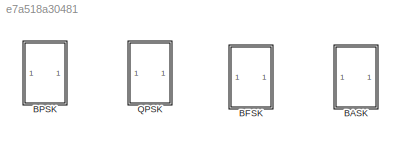
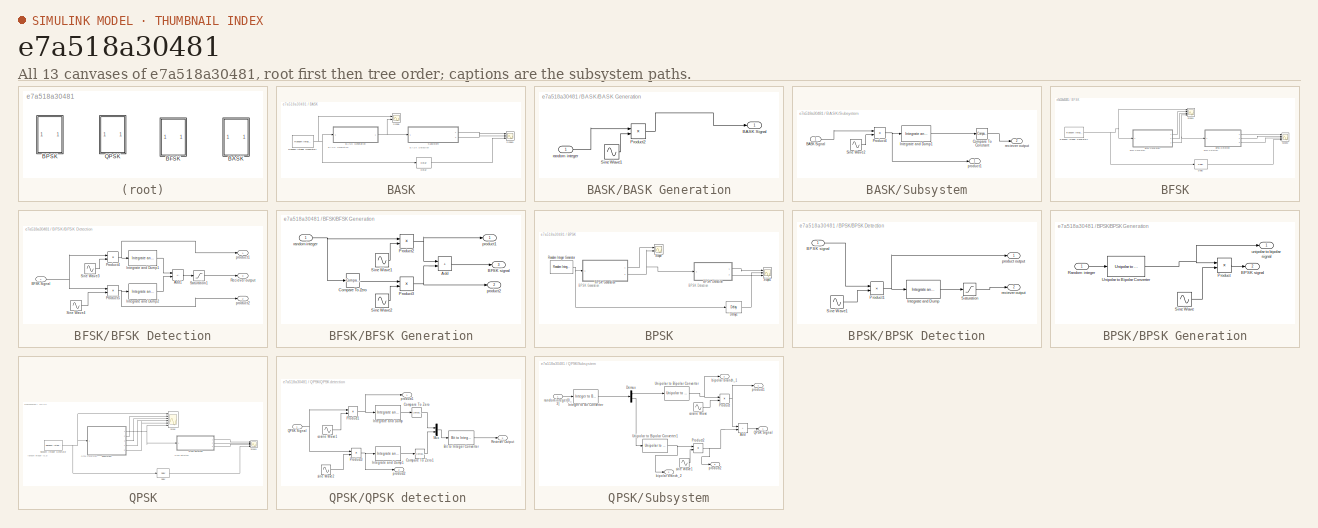
[diagram: thumbnail index - all 13 canvases of the model, root first then tree order]
MODEL slx_e7a518a30481
KIND model
CONFIG AbsTol = auto
CONFIG EnableMultiTasking = on
CONFIG FixedStep = auto
CONFIG MaxStep = auto
CONFIG MinStep = auto
CONFIG RelTol = 1e-3
CONFIG SampleTimeConstraint = Unconstrained
CONFIG Solver = VariableStepAuto
CONFIG SolverName = VariableStepAuto
CONFIG StartTime = 0.0
CONFIG StopTime = 0.1
BLOCK [SubSystem] BASK
  Ports = []
  RequestExecContextInheritance = off
BLOCK [SubSystem] BASK/BASK Generation
  Ports = [1, 1]
  RequestExecContextInheritance = off
BLOCK [Outport] BASK/BASK Generation/BASK Signal
BLOCK [Product] BASK/BASK Generation/Product2
  Ports = [2, 1]
BLOCK [Sin] BASK/BASK Generation/Sine Wave1
  Frequency = 300*2*pi
  Phase = pi/2
  Ports = [0, 1]
  SampleTime = 1/(300*100)
BLOCK [Inport] BASK/BASK Generation/random integer
BLOCK [Delay] BASK/Delay
  DelayLength = 1
  InputPortMap = u0
  InputProcessing = Columns as channels (frame based)
  Ports = [1, 1]
BLOCK [Reference] BASK/Random Integer Generator1  REF=commrandsrc3/Random Integer
Generator
  Ports = [0, 1]
  SourceBlock = commrandsrc3/Random Integer\nGenerator
  SourceProductBaseCode = CM
  SourceType = Random Integer Generator
BLOCK [Scope] BASK/Scope
  Floating = off
  NumInputPorts = 2
  Ports = [2]
  ScopeSpecificationString = Simulink.scopes.TimeScopeBlockCfg('CurrentConfiguration', extmgr.ConfigurationSet(extmgr.Configuration('Core','General UI',true),extmgr.Configuration('Core','Source UI',true),extmgr.Configuration('Sources','WiredSimulink',true,'DataLoggingVariableName','ScopeData1'),extmgr.Configuration('Visuals','Time Domain',true,'SerializedDisplays',{struct('MinYLimReal','-0.125','MaxYLimReal','1.125','YLabelRe...<+1983ch>
BLOCK [Scope] BASK/Scope1
  Floating = off
  NumInputPorts = 3
  Ports = [3]
  ScopeSpecificationString = Simulink.scopes.TimeScopeBlockCfg('CurrentConfiguration', extmgr.ConfigurationSet(extmgr.Configuration('Core','General UI',true),extmgr.Configuration('Core','Source UI',true),extmgr.Configuration('Sources','WiredSimulink',true,'DataLoggingVariableName','ScopeData2'),extmgr.Configuration('Visuals','Time Domain',true,'SerializedDisplays',{struct('MinYLimReal','-0.125','MaxYLimReal','1.125','YLabelRe...<+2739ch>
BLOCK [SubSystem] BASK/Subsystem
  Ports = [1, 2]
  RequestExecContextInheritance = off
BLOCK [Inport] BASK/Subsystem/BASK Signal
BLOCK [Reference] BASK/Subsystem/Compare To Constant  REF=simulink/Logic and Bit
Operations/Compare
To Constant
  Ports = [1, 1]
  SourceBlock = simulink/Logic and Bit\nOperations/Compare\nTo Constant
  SourceProductBaseCode = SL
  SourceType = Compare To Constant
BLOCK [Reference] BASK/Subsystem/Integrate and Dump1  REF=commfilt2/Integrate
and Dump
  Ports = [1, 1]
  SourceBlock = commfilt2/Integrate\nand Dump
  SourceProductBaseCode = CM
  SourceType = Integrate and Dump
BLOCK [Product] BASK/Subsystem/Product4
  Ports = [2, 1]
BLOCK [Sin] BASK/Subsystem/Sine Wave2
  Frequency = 300*2*pi
  Phase = pi/2
  Ports = [0, 1]
  SampleTime = 1/(300*100)
BLOCK [Outport] BASK/Subsystem/product1
BLOCK [Outport] BASK/Subsystem/reciever output
  Port = 2
BLOCK [SubSystem] BFSK
  Ports = []
  RequestExecContextInheritance = off
BLOCK [SubSystem] BFSK/BFSK Detection
  Ports = [1, 3]
  RequestExecContextInheritance = off
BLOCK [Sum] BFSK/BFSK Detection/Add1
  IconShape = rectangular
  Inputs = +-
  Ports = [2, 1]
BLOCK [Inport] BFSK/BFSK Detection/BFSK Signal
BLOCK [Reference] BFSK/BFSK Detection/Integrate and Dump1  REF=commfilt2/Integrate
and Dump
  Ports = [1, 1]
  SourceBlock = commfilt2/Integrate\nand Dump
  SourceProductBaseCode = CM
  SourceType = Integrate and Dump
BLOCK [Reference] BFSK/BFSK Detection/Integrate and Dump2  REF=commfilt2/Integrate
and Dump
  Ports = [1, 1]
  SourceBlock = commfilt2/Integrate\nand Dump
  SourceProductBaseCode = CM
  SourceType = Integrate and Dump
BLOCK [Product] BFSK/BFSK Detection/Product4
  Ports = [2, 1]
BLOCK [Product] BFSK/BFSK Detection/Product5
  Ports = [2, 1]
BLOCK [Outport] BFSK/BFSK Detection/Reciever output
  Port = 3
BLOCK [Saturate] BFSK/BFSK Detection/Saturation1
  LowerLimit = 0
  UpperLimit = 1
BLOCK [Sin] BFSK/BFSK Detection/Sine Wave3
  Frequency = 300*2*pi
  Phase = pi/2
  Ports = [0, 1]
  SampleTime = 1/(600*50)
BLOCK [Sin] BFSK/BFSK Detection/Sine Wave4
  Frequency = 600*2*pi
  Phase = pi/2
  Ports = [0, 1]
  SampleTime = 1/(600*50)
BLOCK [Outport] BFSK/BFSK Detection/product1
BLOCK [Outport] BFSK/BFSK Detection/product2
  Port = 2
BLOCK [SubSystem] BFSK/BFSK Generation
  Ports = [1, 3]
  RequestExecContextInheritance = off
BLOCK [Sum] BFSK/BFSK Generation/Add
  IconShape = rectangular
  Ports = [2, 1]
BLOCK [Outport] BFSK/BFSK Generation/BFSK signal
  Port = 3
BLOCK [Reference] BFSK/BFSK Generation/Compare To Zero  REF=simulink/Logic and Bit
Operations/Compare
To Zero
  Ports = [1, 1]
  SourceBlock = simulink/Logic and Bit\nOperations/Compare\nTo Zero
  SourceProductBaseCode = SL
  SourceType = Compare To Zero
BLOCK [Product] BFSK/BFSK Generation/Product2
  Ports = [2, 1]
BLOCK [Product] BFSK/BFSK Generation/Product3
  Ports = [2, 1]
BLOCK [Sin] BFSK/BFSK Generation/Sine Wave1
  Frequency = 300*2*pi
  Phase = pi/2
  Ports = [0, 1]
  SampleTime = 1/(600*50)
BLOCK [Sin] BFSK/BFSK Generation/Sine Wave2
  Frequency = 600*2*pi
  Phase = pi/2
  Ports = [0, 1]
  SampleTime = 1/(600*50)
BLOCK [Outport] BFSK/BFSK Generation/product1
BLOCK [Outport] BFSK/BFSK Generation/product2
  Port = 2
BLOCK [Inport] BFSK/BFSK Generation/random integer
BLOCK [Delay] BFSK/Delay
  DelayLength = 1
  InputPortMap = u0
  InputProcessing = Columns as channels (frame based)
  Ports = [1, 1]
BLOCK [Reference] BFSK/Random Integer Generator1  REF=commrandsrc3/Random Integer
Generator
  Ports = [0, 1]
  SourceBlock = commrandsrc3/Random Integer\nGenerator
  SourceProductBaseCode = CM
  SourceType = Random Integer Generator
BLOCK [Scope] BFSK/Scope1
  Floating = off
  NumInputPorts = 4
  Ports = [4]
  ScopeSpecificationString = Simulink.scopes.TimeScopeBlockCfg('CurrentConfiguration', extmgr.ConfigurationSet(extmgr.Configuration('Core','General UI',true),extmgr.Configuration('Core','Source UI',true),extmgr.Configuration('Sources','WiredSimulink',true,'DataLoggingVariableName','ScopeData2'),extmgr.Configuration('Visuals','Time Domain',true,'SerializedDisplays',{struct('MinYLimReal','-0.125','MaxYLimReal','1.125','YLabelRe...<+3449ch>
BLOCK [Scope] BFSK/Scope2
  Floating = off
  NumInputPorts = 4
  Ports = [4]
  ScopeSpecificationString = Simulink.scopes.TimeScopeBlockCfg('CurrentConfiguration', extmgr.ConfigurationSet(extmgr.Configuration('Core','General UI',true),extmgr.Configuration('Core','Source UI',true),extmgr.Configuration('Sources','WiredSimulink',true,'DataLoggingVariableName','ScopeData3'),extmgr.Configuration('Visuals','Time Domain',true,'SerializedDisplays',{struct('MinYLimReal','-1.25','MaxYLimReal','1.25','YLabelReal...<+3487ch>
BLOCK [SubSystem] BPSK
  Ports = []
  RequestExecContextInheritance = off
BLOCK [SubSystem] BPSK/BPSK Detection
  Ports = [1, 2]
  RequestExecContextInheritance = off
BLOCK [Inport] BPSK/BPSK Detection/BPSK signal
BLOCK [Reference] BPSK/BPSK Detection/Integrate and Dump  REF=commfilt2/Integrate
and Dump
  Ports = [1, 1]
  SourceBlock = commfilt2/Integrate\nand Dump
  SourceProductBaseCode = CM
  SourceType = Integrate and Dump
BLOCK [Product] BPSK/BPSK Detection/Product1
  Ports = [2, 1]
BLOCK [Saturate] BPSK/BPSK Detection/Saturation
  LowerLimit = 0
  UpperLimit = 1
BLOCK [Sin] BPSK/BPSK Detection/Sine Wave1
  Frequency = 300*2*pi
  Ports = [0, 1]
  SampleTime = 1/(300*50)
BLOCK [Outport] BPSK/BPSK Detection/product output
BLOCK [Outport] BPSK/BPSK Detection/reciever output
  Port = 2
BLOCK [SubSystem] BPSK/BPSK Generation
  Ports = [1, 2]
  RequestExecContextInheritance = off
BLOCK [Outport] BPSK/BPSK Generation/BPSK signal
  Port = 2
BLOCK [Product] BPSK/BPSK Generation/Product
  Ports = [2, 1]
BLOCK [Inport] BPSK/BPSK Generation/Random integer
  IconDisplay = Signal name
BLOCK [Sin] BPSK/BPSK Generation/Sine Wave
  Frequency = 300*2*pi
  Ports = [0, 1]
  SampleTime = 1/(300*50)
BLOCK [Reference] BPSK/BPSK Generation/Unipolar to Bipolar Converter  REF=commutil2/Unipolar to
Bipolar
Converter
  Ports = [1, 1]
  SourceBlock = commutil2/Unipolar to\nBipolar\nConverter
  SourceProductBaseCode = CM
  SourceType = Unipolar to Bipolar Converter
BLOCK [Outport] BPSK/BPSK Generation/unipolar to bipolar signal
BLOCK [Delay] BPSK/Delay1
  DelayLength = 1
  InputPortMap = u0
  InputProcessing = Columns as channels (frame based)
  Ports = [1, 1]
BLOCK [Reference] BPSK/Random Integer Generator  REF=commrandsrc3/Random Integer
Generator
  Ports = [0, 1]
  SourceBlock = commrandsrc3/Random Integer\nGenerator
  SourceProductBaseCode = CM
  SourceType = Random Integer Generator
BLOCK [Scope] BPSK/Scope
  Floating = off
  NumInputPorts = 2
  Ports = [2]
  ScopeSpecificationString = Simulink.scopes.TimeScopeBlockCfg('CurrentConfiguration', extmgr.ConfigurationSet(extmgr.Configuration('Core','General UI',true),extmgr.Configuration('Core','Source UI',true),extmgr.Configuration('Sources','WiredSimulink',true),extmgr.Configuration('Visuals','Time Domain',true,'SerializedDisplays',{struct('MinYLimReal','-1.25','MaxYLimReal','1.25','YLabelReal','','MinYLimMag','0.00000','MaxYLimMag...<+1962ch>
BLOCK [Scope] BPSK/Scope1
  Floating = off
  NumInputPorts = 3
  Ports = [3]
  ScopeSpecificationString = Simulink.scopes.TimeScopeBlockCfg('CurrentConfiguration', extmgr.ConfigurationSet(extmgr.Configuration('Core','General UI',true),extmgr.Configuration('Core','Source UI',true),extmgr.Configuration('Sources','WiredSimulink',true,'DataLoggingVariableName','ScopeData1'),extmgr.Configuration('Visuals','Time Domain',true,'SerializedDisplays',{struct('MinYLimReal','-1.24507','MaxYLimReal','1.24507','YLab...<+2744ch>
BLOCK [SubSystem] QPSK
  Ports = []
  RequestExecContextInheritance = off
BLOCK [Delay] QPSK/Delay
  DelayLength = 1
  InputPortMap = u0
  InputProcessing = Columns as channels (frame based)
  Ports = [1, 1]
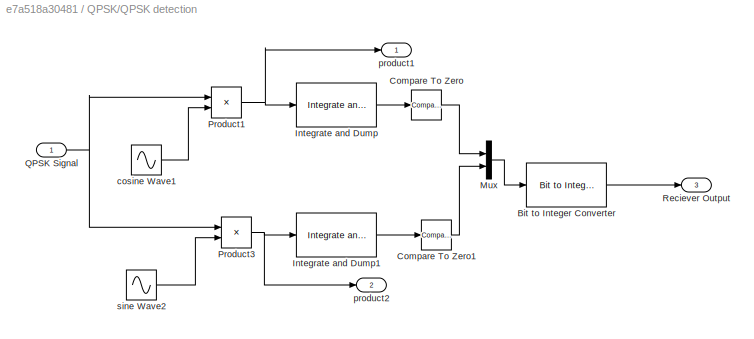
BLOCK [SubSystem] QPSK/QPSK detection 
  Ports = [1, 3]
  RequestExecContextInheritance = off
BLOCK [Reference] QPSK/QPSK detection /Bit to Integer Converter  REF=commutil2/Bit to Integer
Converter
  Ports = [1, 1]
  SourceBlock = commutil2/Bit to Integer\nConverter
  SourceProductBaseCode = CM
  SourceType = Bit to Integer Converter
BLOCK [Reference] QPSK/QPSK detection /Compare To Zero  REF=simulink/Logic and Bit
Operations/Compare
To Zero
  Ports = [1, 1]
  SourceBlock = simulink/Logic and Bit\nOperations/Compare\nTo Zero
  SourceProductBaseCode = SL
  SourceType = Compare To Zero
BLOCK [Reference] QPSK/QPSK detection /Compare To Zero1  REF=simulink/Logic and Bit
Operations/Compare
To Zero
  Ports = [1, 1]
  SourceBlock = simulink/Logic and Bit\nOperations/Compare\nTo Zero
  SourceProductBaseCode = SL
  SourceType = Compare To Zero
BLOCK [Reference] QPSK/QPSK detection /Integrate and Dump  REF=commfilt2/Integrate
and Dump
  Ports = [1, 1]
  SourceBlock = commfilt2/Integrate\nand Dump
  SourceProductBaseCode = CM
  SourceType = Integrate and Dump
BLOCK [Reference] QPSK/QPSK detection /Integrate and Dump1  REF=commfilt2/Integrate
and Dump
  Ports = [1, 1]
  SourceBlock = commfilt2/Integrate\nand Dump
  SourceProductBaseCode = CM
  SourceType = Integrate and Dump
BLOCK [Mux] QPSK/QPSK detection /Mux
  DisplayOption = bar
  Inputs = 2
  Ports = [2, 1]
BLOCK [Product] QPSK/QPSK detection /Product1
  Ports = [2, 1]
BLOCK [Product] QPSK/QPSK detection /Product3
  Ports = [2, 1]
BLOCK [Inport] QPSK/QPSK detection /QPSK Signal
BLOCK [Outport] QPSK/QPSK detection /Reciever Output
  Port = 3
BLOCK [Sin] QPSK/QPSK detection /cosine Wave1
  Amplitude = 0.7071
  Frequency = 300*2*pi
  Phase = pi/2
  Ports = [0, 1]
  SampleTime = 1/(300*100)
BLOCK [Outport] QPSK/QPSK detection /product1
BLOCK [Outport] QPSK/QPSK detection /product2
  Port = 2
BLOCK [Sin] QPSK/QPSK detection /sine Wave2
  Amplitude = 0.7071
  Frequency = 300*2*pi
  Ports = [0, 1]
  SampleTime = 1/(300*100)
BLOCK [Reference] QPSK/Random Integer Generator  REF=commrandsrc3/Random Integer
Generator
  Ports = [0, 1]
  SourceBlock = commrandsrc3/Random Integer\nGenerator
  SourceProductBaseCode = CM
  SourceType = Random Integer Generator
BLOCK [Scope] QPSK/Scope
  Floating = off
  NumInputPorts = 6
  Ports = [6]
  ScopeSpecificationString = Simulink.scopes.TimeScopeBlockCfg('CurrentConfiguration', extmgr.ConfigurationSet(extmgr.Configuration('Core','General UI',true),extmgr.Configuration('Core','Source UI',true),extmgr.Configuration('Sources','WiredSimulink',true),extmgr.Configuration('Visuals','Time Domain',true,'SerializedDisplays',{struct('MinYLimReal','-0.375','MaxYLimReal','3.375','YLabelReal','','MinYLimMag','0.00000','MaxYLimM...<+6140ch>
BLOCK [Scope] QPSK/Scope1
  Floating = off
  NumInputPorts = 4
  Ports = [4]
  ScopeSpecificationString = Simulink.scopes.TimeScopeBlockCfg('CurrentConfiguration', extmgr.ConfigurationSet(extmgr.Configuration('Core','General UI',true),extmgr.Configuration('Core','Source UI',true),extmgr.Configuration('Sources','WiredSimulink',true,'DataLoggingVariableName','ScopeData2'),extmgr.Configuration('Visuals','Time Domain',true,'SerializedDisplays',{struct('MinYLimReal','-0.75421','MaxYLimReal','0.75421','YLab...<+3393ch>
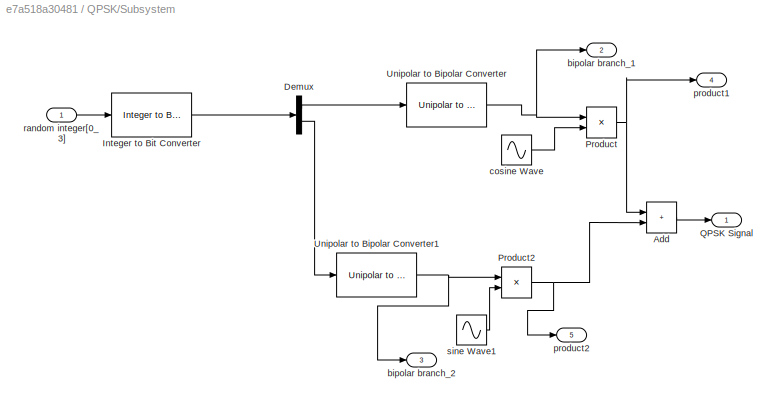
BLOCK [SubSystem] QPSK/Subsystem
  Ports = [1, 5]
  RequestExecContextInheritance = off
BLOCK [Sum] QPSK/Subsystem/Add
  IconShape = rectangular
  Ports = [2, 1]
BLOCK [Demux] QPSK/Subsystem/Demux
  Outputs = 2
  Ports = [1, 2]
BLOCK [Reference] QPSK/Subsystem/Integer to Bit Converter  REF=commutil2/Integer to Bit
Converter
  Ports = [1, 1]
  SourceBlock = commutil2/Integer to Bit\nConverter
  SourceProductBaseCode = CM
  SourceType = Integer to Bit Converter
BLOCK [Product] QPSK/Subsystem/Product
  Ports = [2, 1]
BLOCK [Product] QPSK/Subsystem/Product2
  Ports = [2, 1]
BLOCK [Outport] QPSK/Subsystem/QPSK Signal
BLOCK [Reference] QPSK/Subsystem/Unipolar to Bipolar Converter  REF=commutil2/Unipolar to
Bipolar
Converter
  Ports = [1, 1]
  SourceBlock = commutil2/Unipolar to\nBipolar\nConverter
  SourceProductBaseCode = CM
  SourceType = Unipolar to Bipolar Converter
BLOCK [Reference] QPSK/Subsystem/Unipolar to Bipolar Converter1  REF=commutil2/Unipolar to
Bipolar
Converter
  Ports = [1, 1]
  SourceBlock = commutil2/Unipolar to\nBipolar\nConverter
  SourceProductBaseCode = CM
  SourceType = Unipolar to Bipolar Converter
BLOCK [Outport] QPSK/Subsystem/bipolar branch_1
  Port = 2
BLOCK [Outport] QPSK/Subsystem/bipolar branch_2
  Port = 3
BLOCK [Sin] QPSK/Subsystem/cosine Wave
  Amplitude = 0.7071
  Frequency = 300*2*pi
  Phase = pi/2
  Ports = [0, 1]
  SampleTime = 1/(300*100)
BLOCK [Outport] QPSK/Subsystem/product1
  Port = 4
BLOCK [Outport] QPSK/Subsystem/product2
  Port = 5
BLOCK [Inport] QPSK/Subsystem/random integer[0_3]
BLOCK [Sin] QPSK/Subsystem/sine Wave1
  Amplitude = 0.7071
  Frequency = 300*2*pi
  Ports = [0, 1]
  SampleTime = 1/(300*100)
ANNOTATION BASK: BASK Detection
ANNOTATION BASK: BASK Generation
ANNOTATION BFSK: BFSK Detection
ANNOTATION BFSK: BFSK Generation
ANNOTATION BPSK: BPSK Detection
ANNOTATION BPSK: BPSK Generation
ANNOTATION QPSK: QPSK Detection
ANNOTATION QPSK: QPSK Generation
ANNOTATION QPSK: random integer {0,3}
LINE BASK/BASK Generation/Product2:1 -> BASK/BASK Generation/BASK Signal:1
LINE BASK/BASK Generation/Sine Wave1:1 -> BASK/BASK Generation/Product2:2
LINE BASK/BASK Generation/random integer:1 -> BASK/BASK Generation/Product2:1
NET BASK/BASK Generation:1 -> BASK/Scope:2, BASK/Subsystem:1
LINE BASK/Delay:1 -> BASK/Scope1:3
NET BASK/Random Integer Generator1:1 -> BASK/BASK Generation:1, BASK/Delay:1, BASK/Scope:1
LINE BASK/Subsystem/BASK Signal:1 -> BASK/Subsystem/Product4:1
LINE BASK/Subsystem/Compare To Constant:1 -> BASK/Subsystem/reciever output:1
LINE BASK/Subsystem/Integrate and Dump1:1 -> BASK/Subsystem/Compare To Constant:1
NET BASK/Subsystem/Product4:1 -> BASK/Subsystem/Integrate and Dump1:1, BASK/Subsystem/product1:1
LINE BASK/Subsystem/Sine Wave2:1 -> BASK/Subsystem/Product4:2
LINE BASK/Subsystem:1 -> BASK/Scope1:1
LINE BASK/Subsystem:2 -> BASK/Scope1:2
LINE BFSK/BFSK Detection/Add1:1 -> BFSK/BFSK Detection/Saturation1:1
NET BFSK/BFSK Detection/BFSK Signal:1 -> BFSK/BFSK Detection/Product4:1, BFSK/BFSK Detection/Product5:1
LINE BFSK/BFSK Detection/Integrate and Dump1:1 -> BFSK/BFSK Detection/Add1:1
LINE BFSK/BFSK Detection/Integrate and Dump2:1 -> BFSK/BFSK Detection/Add1:2
NET BFSK/BFSK Detection/Product4:1 -> BFSK/BFSK Detection/Integrate and Dump1:1, BFSK/BFSK Detection/product1:1
NET BFSK/BFSK Detection/Product5:1 -> BFSK/BFSK Detection/Integrate and Dump2:1, BFSK/BFSK Detection/product2:1
LINE BFSK/BFSK Detection/Saturation1:1 -> BFSK/BFSK Detection/Reciever output:1
LINE BFSK/BFSK Detection/Sine Wave3:1 -> BFSK/BFSK Detection/Product4:2
LINE BFSK/BFSK Detection/Sine Wave4:1 -> BFSK/BFSK Detection/Product5:2
LINE BFSK/BFSK Detection:1 -> BFSK/Scope2:1
LINE BFSK/BFSK Detection:2 -> BFSK/Scope2:2
LINE BFSK/BFSK Detection:3 -> BFSK/Scope2:3
LINE BFSK/BFSK Generation/Add:1 -> BFSK/BFSK Generation/BFSK signal:1
LINE BFSK/BFSK Generation/Compare To Zero:1 -> BFSK/BFSK Generation/Product3:1
NET BFSK/BFSK Generation/Product2:1 -> BFSK/BFSK Generation/Add:1, BFSK/BFSK Generation/product1:1
NET BFSK/BFSK Generation/Product3:1 -> BFSK/BFSK Generation/Add:2, BFSK/BFSK Generation/product2:1
LINE BFSK/BFSK Generation/Sine Wave1:1 -> BFSK/BFSK Generation/Product2:2
LINE BFSK/BFSK Generation/Sine Wave2:1 -> BFSK/BFSK Generation/Product3:2
NET BFSK/BFSK Generation/random integer:1 -> BFSK/BFSK Generation/Compare To Zero:1, BFSK/BFSK Generation/Product2:1
LINE BFSK/BFSK Generation:1 -> BFSK/Scope1:2
LINE BFSK/BFSK Generation:2 -> BFSK/Scope1:3
NET BFSK/BFSK Generation:3 -> BFSK/BFSK Detection:1, BFSK/Scope1:4
LINE BFSK/Delay:1 -> BFSK/Scope2:4
NET BFSK/Random Integer Generator1:1 -> BFSK/BFSK Generation:1, BFSK/Delay:1, BFSK/Scope1:1
LINE BPSK/BPSK Detection/BPSK signal:1 -> BPSK/BPSK Detection/Product1:1
LINE BPSK/BPSK Detection/Integrate and Dump:1 -> BPSK/BPSK Detection/Saturation:1
NET BPSK/BPSK Detection/Product1:1 -> BPSK/BPSK Detection/Integrate and Dump:1, BPSK/BPSK Detection/product output:1
LINE BPSK/BPSK Detection/Saturation:1 -> BPSK/BPSK Detection/reciever output:1
LINE BPSK/BPSK Detection/Sine Wave1:1 -> BPSK/BPSK Detection/Product1:2
LINE BPSK/BPSK Detection:1 -> BPSK/Scope1:1
LINE BPSK/BPSK Detection:2 -> BPSK/Scope1:3
LINE BPSK/BPSK Generation/Product:1 -> BPSK/BPSK Generation/BPSK signal:1
LINE BPSK/BPSK Generation/Random integer:1 -> BPSK/BPSK Generation/Unipolar to Bipolar Converter:1
LINE BPSK/BPSK Generation/Sine Wave:1 -> BPSK/BPSK Generation/Product:2
NET BPSK/BPSK Generation/Unipolar to Bipolar Converter:1 -> BPSK/BPSK Generation/Product:1, BPSK/BPSK Generation/unipolar to bipolar signal:1
LINE BPSK/BPSK Generation:1 -> BPSK/Scope:1
NET BPSK/BPSK Generation:2 -> BPSK/BPSK Detection:1, BPSK/Scope:2
LINE BPSK/Delay1:1 -> BPSK/Scope1:2
NET BPSK/Random Integer Generator:1 -> BPSK/BPSK Generation:1, BPSK/Delay1:1
LINE QPSK/Delay:1 -> QPSK/Scope1:4
LINE QPSK/QPSK detection /Bit to Integer Converter:1 -> QPSK/QPSK detection /Reciever Output:1
LINE QPSK/QPSK detection /Compare To Zero1:1 -> QPSK/QPSK detection /Mux:2
LINE QPSK/QPSK detection /Compare To Zero:1 -> QPSK/QPSK detection /Mux:1
LINE QPSK/QPSK detection /Integrate and Dump1:1 -> QPSK/QPSK detection /Compare To Zero1:1
LINE QPSK/QPSK detection /Integrate and Dump:1 -> QPSK/QPSK detection /Compare To Zero:1
LINE QPSK/QPSK detection /Mux:1 -> QPSK/QPSK detection /Bit to Integer Converter:1
NET QPSK/QPSK detection /Product1:1 -> QPSK/QPSK detection /Integrate and Dump:1, QPSK/QPSK detection /product1:1
NET QPSK/QPSK detection /Product3:1 -> QPSK/QPSK detection /Integrate and Dump1:1, QPSK/QPSK detection /product2:1
NET QPSK/QPSK detection /QPSK Signal:1 -> QPSK/QPSK detection /Product1:1, QPSK/QPSK detection /Product3:1
LINE QPSK/QPSK detection /cosine Wave1:1 -> QPSK/QPSK detection /Product1:2
LINE QPSK/QPSK detection /sine Wave2:1 -> QPSK/QPSK detection /Product3:2
LINE QPSK/QPSK detection :1 -> QPSK/Scope1:1
LINE QPSK/QPSK detection :2 -> QPSK/Scope1:2
LINE QPSK/QPSK detection :3 -> QPSK/Scope1:3
NET QPSK/Random Integer Generator:1 -> QPSK/Delay:1, QPSK/Scope:1, QPSK/Subsystem:1
LINE QPSK/Subsystem/Add:1 -> QPSK/Subsystem/QPSK Signal:1
LINE QPSK/Subsystem/Demux:1 -> QPSK/Subsystem/Unipolar to Bipolar Converter:1
LINE QPSK/Subsystem/Demux:2 -> QPSK/Subsystem/Unipolar to Bipolar Converter1:1
LINE QPSK/Subsystem/Integer to Bit Converter:1 -> QPSK/Subsystem/Demux:1
NET QPSK/Subsystem/Product2:1 -> QPSK/Subsystem/Add:2, QPSK/Subsystem/product2:1
NET QPSK/Subsystem/Product:1 -> QPSK/Subsystem/Add:1, QPSK/Subsystem/product1:1
NET QPSK/Subsystem/Unipolar to Bipolar Converter1:1 -> QPSK/Subsystem/Product2:1, QPSK/Subsystem/bipolar branch_2:1
NET QPSK/Subsystem/Unipolar to Bipolar Converter:1 -> QPSK/Subsystem/Product:1, QPSK/Subsystem/bipolar branch_1:1
LINE QPSK/Subsystem/cosine Wave:1 -> QPSK/Subsystem/Product:2
LINE QPSK/Subsystem/random integer[0_3]:1 -> QPSK/Subsystem/Integer to Bit Converter:1
LINE QPSK/Subsystem/sine Wave1:1 -> QPSK/Subsystem/Product2:2
NET QPSK/Subsystem:1 -> QPSK/QPSK detection :1, QPSK/Scope:6
LINE QPSK/Subsystem:2 -> QPSK/Scope:2
LINE QPSK/Subsystem:3 -> QPSK/Scope:3
LINE QPSK/Subsystem:4 -> QPSK/Scope:4
LINE QPSK/Subsystem:5 -> QPSK/Scope:5
note: NET lines group one-source signal fan-out (src -> all destinations, sorted); 1:1 wires keep LINE
